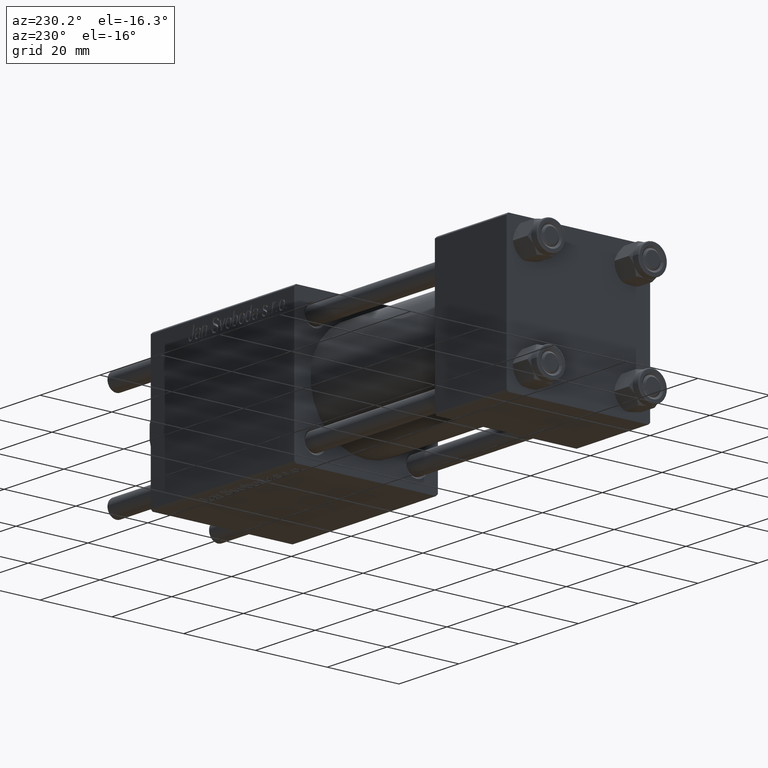
[diagram: clean part render]
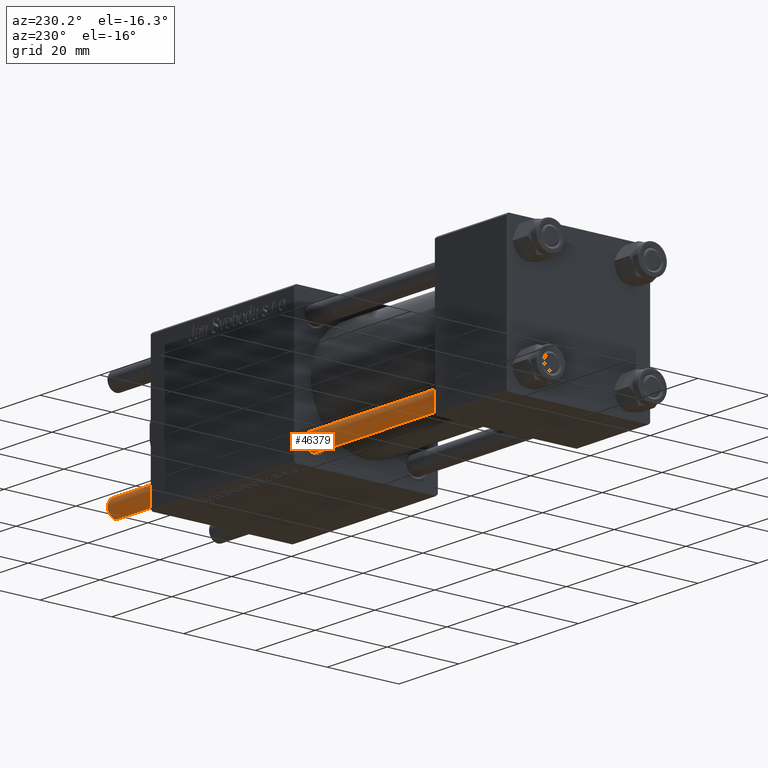
[diagram: same view with one face highlighted and labeled with its STEP entity id]
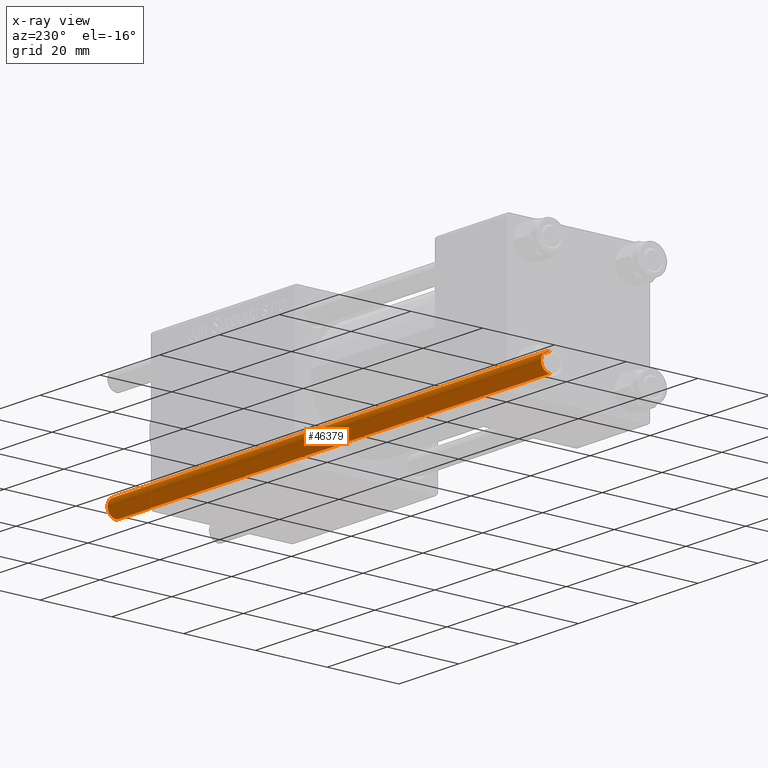
[diagram: x-ray of the same camera — body ghosted, the highlighted face saturated]
A machine part, auxiliary view. The second image highlights one B-rep face of the part: STEP entity #46379.
The next image is the same camera in x-ray: the body ghosted, the highlighted face saturated — about 0% of this face is hidden behind the body in this view.
In plain terms, the highlighted cylindrical surface (edge-blend (fillet) strip) has radius 2.5 mm, axis along (-1, -0, 0).
Its self-contained STEP definition (entity closure, byte-faithful):
#3306 = CARTESIAN_POINT ( 'NONE',  ( 2.500000000000000000, 3.061616997868383141E-16, 146.0000000000000000 ) ) ;
#3534 = VERTEX_POINT ( 'NONE', #20039 ) ;
#4259 = EDGE_LOOP ( 'NONE', ( #5801, #4599, #42997, #22137 ) ) ;
#4313 = DIRECTION ( 'NONE',  ( -0.000000000000000000, -0.000000000000000000, -1.000000000000000000 ) ) ;
#4436 = VECTOR ( 'NONE', #4999, 1000.000000000000000 ) ;
#4599 = ORIENTED_EDGE ( 'NONE', *, *, #42910, .T. ) ;
#4999 = DIRECTION ( 'NONE',  ( -0.000000000000000000, -0.000000000000000000, -1.000000000000000000 ) ) ;
#5801 = ORIENTED_EDGE ( 'NONE', *, *, #37821, .T. ) ;
#5864 = CARTESIAN_POINT ( 'NONE',  ( 2.500000000000000000, 3.061616997868383141E-16, 0.5000000000000559552 ) ) ;
#7890 = DIRECTION ( 'NONE',  ( 0.000000000000000000, 0.000000000000000000, -1.000000000000000000 ) ) ;
#8158 = LINE ( 'NONE', #56024, #4436 ) ;
#9216 = DIRECTION ( 'NONE',  ( -0.000000000000000000, -0.000000000000000000, 1.000000000000000000 ) ) ;
#11139 = CARTESIAN_POINT ( 'NONE',  ( -2.500000000000000000, 0.000000000000000000, 145.5000000000000284 ) ) ;
#12999 = EDGE_CURVE ( 'NONE', #28257, #17858, #8158, .T. ) ;
#13533 = CARTESIAN_POINT ( 'NONE',  ( 0.000000000000000000, 0.000000000000000000, 0.5000000000000559552 ) ) ;
#15175 = AXIS2_PLACEMENT_3D ( 'NONE', #13533, #9216, #44169 ) ;
#17858 = VERTEX_POINT ( 'NONE', #34367 ) ;
#20039 = CARTESIAN_POINT ( 'NONE',  ( 2.500000000000000000, 3.061616997868383141E-16, 145.5000000000000284 ) ) ;
#21073 = LINE ( 'NONE', #3306, #43537 ) ;
#22137 = ORIENTED_EDGE ( 'NONE', *, *, #12999, .F. ) ;
#26030 = CIRCLE ( 'NONE', #37032, 2.500000000000000000 ) ;
#26092 = FACE_OUTER_BOUND ( 'NONE', #4259, .T. ) ;
#26652 = CYLINDRICAL_SURFACE ( 'NONE', #53751, 2.500000000000000000 ) ;
#28257 = VERTEX_POINT ( 'NONE', #11139 ) ;
#34367 = CARTESIAN_POINT ( 'NONE',  ( -2.500000000000000000, 0.000000000000000000, 0.5000000000000559552 ) ) ;
#34835 = DIRECTION ( 'NONE',  ( 1.000000000000000000, 0.000000000000000000, 0.000000000000000000 ) ) ;
#35919 = VERTEX_POINT ( 'NONE', #5864 ) ;
#37032 = AXIS2_PLACEMENT_3D ( 'NONE', #39127, #7890, #34835 ) ;
#37821 = EDGE_CURVE ( 'NONE', #28257, #3534, #26030, .T. ) ;
#39127 = CARTESIAN_POINT ( 'NONE',  ( 0.000000000000000000, 0.000000000000000000, 145.5000000000000284 ) ) ;
#41985 = EDGE_CURVE ( 'NONE', #35919, #17858, #44443, .T. ) ;
#42910 = EDGE_CURVE ( 'NONE', #3534, #35919, #21073, .T. ) ;
#42997 = ORIENTED_EDGE ( 'NONE', *, *, #41985, .T. ) ;
#43537 = VECTOR ( 'NONE', #56618, 1000.000000000000000 ) ;
#44121 = CARTESIAN_POINT ( 'NONE',  ( 0.000000000000000000, 0.000000000000000000, 146.0000000000000000 ) ) ;
#44169 = DIRECTION ( 'NONE',  ( 1.000000000000000000, 0.000000000000000000, 0.000000000000000000 ) ) ;
#44443 = CIRCLE ( 'NONE', #15175, 2.500000000000000000 ) ;
#46379 = ADVANCED_FACE ( 'NONE', ( #26092 ), #26652, .T. ) ;
#52747 = DIRECTION ( 'NONE',  ( -1.000000000000000000, 0.000000000000000000, 0.000000000000000000 ) ) ;
#53751 = AXIS2_PLACEMENT_3D ( 'NONE', #44121, #4313, #52747 ) ;
#56024 = CARTESIAN_POINT ( 'NONE',  ( -2.500000000000000000, 0.000000000000000000, 146.0000000000000000 ) ) ;
#56618 = DIRECTION ( 'NONE',  ( -0.000000000000000000, -0.000000000000000000, -1.000000000000000000 ) ) ;